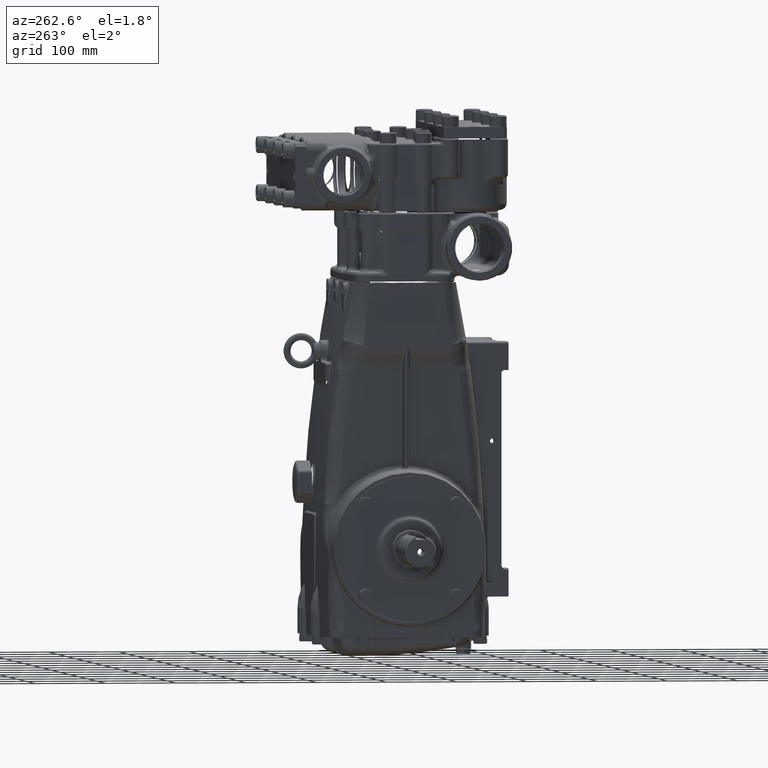
[diagram: clean part render]
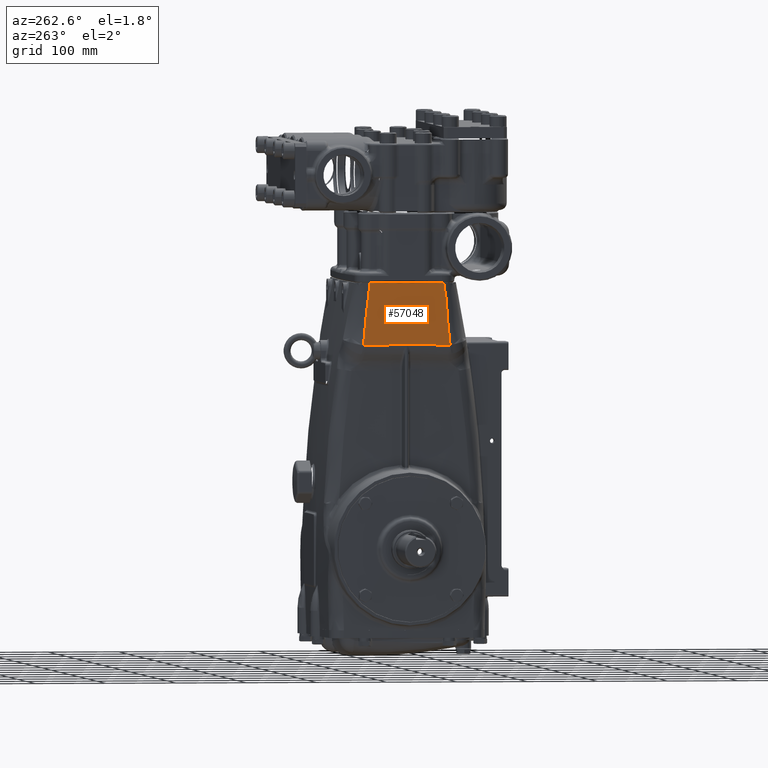
[diagram: same view with one face highlighted and labeled with its STEP entity id]
A machine part, auxiliary view. The second image highlights one B-rep face of the part: STEP entity #57048.
In plain terms, the highlighted cylindrical surface (partial cylindrical patch) has radius 1800 mm, axis along (-0, -0, 1).
Its self-contained STEP definition (entity closure, byte-faithful):
#525 = DIRECTION ( 'NONE',  ( -0.000000000000000000, -0.000000000000000000, 1.000000000000000000 ) ) ;
#535 = CARTESIAN_POINT ( 'NONE',  ( -5.910914856849399435, -2.193886037905765640, 13.98046140597031517 ) ) ;
#889 = ORIENTED_EDGE ( 'NONE', *, *, #108133, .T. ) ;
#1339 = EDGE_CURVE ( 'NONE', #38997, #28461, #31728, .T. ) ;
#2724 = CARTESIAN_POINT ( 'NONE',  ( -5.910311584975073806, 2.213292162712717115, 13.79568169888957563 ) ) ;
#2878 = CARTESIAN_POINT ( 'NONE',  ( -5.906210724278896151, -2.340843054100693710, 11.89896932830630938 ) ) ;
#3351 = CARTESIAN_POINT ( 'NONE',  ( -5.908434182414926461, 2.272563384559500133, 12.89164449754916575 ) ) ;
#3505 = CARTESIAN_POINT ( 'NONE',  ( -5.910056361448352114, -2.221427811899505222, 13.69827415346227184 ) ) ;
#3951 = CARTESIAN_POINT ( 'NONE',  ( -5.907926101290532195, 2.288331828485016040, 12.59603828090800448 ) ) ;
#4104 = CARTESIAN_POINT ( 'NONE',  ( -5.907385859755327928, -2.305001683636797249, 12.32399783327778309 ) ) ;
#4316 = EDGE_CURVE ( 'NONE', #122774, #124254, #118763, .T. ) ;
#9377 = DIRECTION ( 'NONE',  ( 1.000000000000000000, 0.000000000000000000, 0.000000000000000000 ) ) ;
#9386 = CARTESIAN_POINT ( 'NONE',  ( -5.905541375365363166, -2.360989895010109141, 11.72600538659578895 ) ) ;
#10001 = CARTESIAN_POINT ( 'NONE',  ( -5.906893569967431645, -2.320070968450516080, 12.12721524649918337 ) ) ;
#10958 = CARTESIAN_POINT ( 'NONE',  ( -5.912411521591919517, 2.145004686772696623, 14.33744058256331222 ) ) ;
#11431 = CARTESIAN_POINT ( 'NONE',  ( -5.944881889763780514, -0.7911277460980798981, 11.33801195392740446 ) ) ;
#12204 = CARTESIAN_POINT ( 'NONE',  ( -5.905583491758536141, 2.359726135792812762, 11.73641014919317271 ) ) ;
#12361 = CARTESIAN_POINT ( 'NONE',  ( -5.905528225752234128, -2.361384348573253522, 11.72284042517351743 ) ) ;
#12837 = CARTESIAN_POINT ( 'NONE',  ( -5.905557928655715827, 2.360493260507960933, 11.73019312247536305 ) ) ;
#12992 = CARTESIAN_POINT ( 'NONE',  ( -5.908673839083826707, -2.265069243921657538, 13.03219826566367345 ) ) ;
#13468 = CARTESIAN_POINT ( 'NONE',  ( -5.908673567012193040, 2.265077751738842515, 13.03242445659455662 ) ) ;
#13620 = CARTESIAN_POINT ( 'NONE',  ( -5.907925503807152090, -2.288350321938684040, 12.59533264268797126 ) ) ;
#14070 = CARTESIAN_POINT ( 'NONE',  ( -5.909797359077495926, 2.229702078746513383, 13.60556097325805069 ) ) ;
#14228 = CARTESIAN_POINT ( 'NONE',  ( -5.912331806775213749, -2.147635647510576007, 14.32089679793592296 ) ) ;
#14691 = CARTESIAN_POINT ( 'NONE',  ( -5.908251518864884311, 2.278240409770262431, 12.78495753448111749 ) ) ;
#16374 = CARTESIAN_POINT ( 'NONE',  ( -5.904836973050063165, -2.382033327837833170, 11.57145764498315543 ) ) ;
#16993 = EDGE_CURVE ( 'NONE', #92706, #78519, #85988, .T. ) ;
#17110 = ORIENTED_EDGE ( 'NONE', *, *, #91810, .T. ) ;
#18588 = CARTESIAN_POINT ( 'NONE',  ( -5.914316301299402667, 2.081233267886914540, 14.67785554985681529 ) ) ;
#18900 = CARTESIAN_POINT ( 'NONE',  ( -5.908983937900786465, -2.255372266826038974, 13.21457805618659087 ) ) ;
#19515 = ORIENTED_EDGE ( 'NONE', *, *, #16993, .T. ) ;
#19531 = CARTESIAN_POINT ( 'NONE',  ( -5.910663802918763032, -2.201962013150760900, 13.90348354608459580 ) ) ;
#19619 = AXIS2_PLACEMENT_3D ( 'NONE', #87103, #525, #9377 ) ;
#19838 = CARTESIAN_POINT ( 'NONE',  ( -5.914849519459009386, 2.062923769285555764, 14.76377952755905376 ) ) ;
#21087 = CARTESIAN_POINT ( 'NONE',  ( -5.913229139133507672, 2.117843687238893935, 14.49218836720061887 ) ) ;
#21717 = CARTESIAN_POINT ( 'NONE',  ( -5.906984198454624746, 2.317302330869617233, 12.16157686259979265 ) ) ;
#21864 = CARTESIAN_POINT ( 'NONE',  ( -5.907926245270652466, -2.288327371963689849, 12.59573738454983882 ) ) ;
#22323 = CARTESIAN_POINT ( 'NONE',  ( -5.907925971269326837, 2.288335852937914972, 12.59596694199654721 ) ) ;
#22478 = CARTESIAN_POINT ( 'NONE',  ( -5.908622468202515243, -2.266675148888330771, 13.00199565570684790 ) ) ;
#22953 = CARTESIAN_POINT ( 'NONE',  ( -5.903375805935151099, 2.425076266536521086, 11.30089893811133983 ) ) ;
#23106 = CARTESIAN_POINT ( 'NONE',  ( -5.910655530657336065, -2.202228099210286949, 13.90094257770731190 ) ) ;
#23576 = CARTESIAN_POINT ( 'NONE',  ( -5.907018452873892933, 2.316255145442352337, 12.17473861268919322 ) ) ;
#23724 = CARTESIAN_POINT ( 'NONE',  ( -5.912957260764703626, -2.126985211393721098, 14.44919566182865189 ) ) ;
#24167 = CARTESIAN_POINT ( 'NONE',  ( -5.910666534261126870, 2.201874150668091890, 13.90450443823717919 ) ) ;
#25871 = CARTESIAN_POINT ( 'NONE',  ( -5.903868404421727334, -2.410696825058905368, 11.38610251722253608 ) ) ;
#26188 = CARTESIAN_POINT ( 'NONE',  ( -5.911320192420449260, -2.180781614502945498, 14.09184732293710773 ) ) ;
#28059 = CARTESIAN_POINT ( 'NONE',  ( -5.910774986753275506, 2.198382997643469228, 13.93728534927780416 ) ) ;
#28461 = VERTEX_POINT ( 'NONE', #69296 ) ;
#28990 = CARTESIAN_POINT ( 'NONE',  ( -5.909465837348431450, -2.240209742213045807, 13.46024854086546263 ) ) ;
#30734 = CARTESIAN_POINT ( 'NONE',  ( -5.944881889763789395, 0.000000000000000000, 11.33801195392741334 ) ) ;
#30966 = ORIENTED_EDGE ( 'NONE', *, *, #33687, .T. ) ;
#31192 = CARTESIAN_POINT ( 'NONE',  ( -5.906987373075787140, 2.317205297167524325, 12.16278999478924128 ) ) ;
#31347 = CARTESIAN_POINT ( 'NONE',  ( -5.908189887958601894, -2.280153209043882967, 12.74866079386039353 ) ) ;
#31728 = B_SPLINE_CURVE_WITH_KNOTS ( 'NONE', 3,
 ( #19838, #18588, #58377, #21087, #57135, #68472, #96883, #106997, #59005, #97515, #10958, #49503, #88067, #69095, #88684, #76092, #114627, #28059, #95651, #47620, #33669, #50734, #98764, #24167, #51371, #2724, #14070, #41267, #62710, #33052, #61498, #100031, #101246, #109499, #79207, #69725, #51999, #71585, #89930, #13468, #3351, #14691, #81682, #89305, #108264, #52606, #108866, #53232, #117734, #3951, #22323, #91761, #40644, #79830, #91142, #43114, #118355, #72197, #110736, #110130, #23576, #90538, #99395, #31192, #100636, #21717, #32423, #60255, #70957, #31804, #60869, #62115, #41883, #12204, #118964, #70338, #12837, #42485, #80443, #120219, #22953 ),
 .UNSPECIFIED., .F., .F.,
 ( 4, 2, 1, 1, 1, 1, 1, 1, 2, 2, 1, 1, 1, 1, 1, 1, 1, 1, 2, 2, 1, 1, 1, 1, 1, 1, 1, 1, 1, 1, 1, 2, 2, 2, 1, 1, 1, 1, 1, 1, 1, 1, 1, 2, 2, 1, 1, 1, 1, 1, 1, 1, 1, 2, 2, 1, 1, 1, 1, 1, 1, 1, 2, 2, 4 ),
 ( 0.000000000000000000, 0.06250000000417306467, 0.09375000000626051988, 0.1093750000073052536, 0.1171875000078276413, 0.1210937500080877111, 0.1230468750082188978, 0.1240234375082833046, 0.1245117187583155011, 0.1250000000083477114, 0.1875000000124950605, 0.2187500000145687351, 0.2343750000156064606, 0.2421875000161244351, 0.2460937500163843106, 0.2480468750165142622, 0.2490234375165783498, 0.2495117187666103797, 0.2497558593916264225, 0.2500000000166424097, 0.3750000000251201837, 0.4375000000293599589, 0.4687500000314789861, 0.4843750000325385274, 0.4921875000330675487, 0.4960937500333313377, 0.4980468750334631767, 0.4990234375335290684, 0.4995117187835613204, 0.4997558594085774186, 0.4998779297210862449, 0.4999389648773399641, 0.5000000000335935724, 0.5625000000370895537, 0.5937500000388373778, 0.6093750000397131217, 0.6171875000401509936, 0.6210937500403699296, 0.6230468750404793976, 0.6240234375405242506, 0.6245117187905466771, 0.6247558594155705469, 0.6248779297280825373, 0.6249389648843248768, 0.6250000000405671052, 0.6875000000336500827, 0.7187500000301906278, 0.7343750000284609003, 0.7421875000275949263, 0.7460937500271619394, 0.7480468750269454459, 0.7490234375268360889, 0.7495117187767814659, 0.7497558594017541544, 0.7500000000267267319, 0.8125000000201291206, 0.8437500000168303149, 0.8593750000151799684, 0.8671875000143547396, 0.8710937500139421807, 0.8730468750137347911, 0.8740234375136310963, 0.8745117187635792488, 0.8750000000135274014, 1.000000000000000000 ),
 .UNSPECIFIED. ) ;
#31804 = CARTESIAN_POINT ( 'NONE',  ( -5.906016381522832148, 2.346702566661738487, 11.84755615944344953 ) ) ;
#31958 = CARTESIAN_POINT ( 'NONE',  ( -5.905447124792739366, -2.363815928739164018, 11.70360253815453433 ) ) ;
#32423 = CARTESIAN_POINT ( 'NONE',  ( -5.906983724185893792, 2.317316826873552227, 12.16139571799301500 ) ) ;
#32581 = CARTESIAN_POINT ( 'NONE',  ( -5.910588093824340916, -2.204396247899172323, 13.87997393401313140 ) ) ;
#33052 = CARTESIAN_POINT ( 'NONE',  ( -5.908809579912570165, 2.260821146657628233, 13.11103706078430342 ) ) ;
#33209 = CARTESIAN_POINT ( 'NONE',  ( -5.910660355757156204, -2.202072898084340480, 13.90242550949435518 ) ) ;
#33669 = CARTESIAN_POINT ( 'NONE',  ( -5.910678260647441284, 2.201496899145066966, 13.90809238845904972 ) ) ;
#33670 = ORIENTED_EDGE ( 'NONE', *, *, #4316, .T. ) ;
#33687 = EDGE_CURVE ( 'NONE', #124254, #70352, #104719, .T. ) ;
#34072 = EDGE_LOOP ( 'NONE', ( #17110, #72224, #102532, #33670, #30966, #889, #19515 ) ) ;
#34425 = CARTESIAN_POINT ( 'NONE',  ( -5.913783481561727839, -2.099529445113942572, 14.59190078789779577 ) ) ;
#35054 = CARTESIAN_POINT ( 'NONE',  ( -5.912367555594764568, -2.146456113003074595, 14.32828832679644826 ) ) ;
#37984 = CARTESIAN_POINT ( 'NONE',  ( -5.903960270934229371, -2.408013827566592546, 11.29745724495016468 ) ) ;
#38462 = CARTESIAN_POINT ( 'NONE',  ( -5.908660965256409270, -2.265471784821569301, 13.02462738432079981 ) ) ;
#38997 = VERTEX_POINT ( 'NONE', #93097 ) ;
#39095 = CARTESIAN_POINT ( 'NONE',  ( -5.906801625286711044, -2.322876944094643292, 12.09365604811865680 ) ) ;
#40644 = CARTESIAN_POINT ( 'NONE',  ( -5.907925882226328085, 2.288338609018522263, 12.59591822003274331 ) ) ;
#40928 = CARTESIAN_POINT ( 'NONE',  ( 64.92125984251968873, 0.000000000000000000, 14.76377952755905376 ) ) ;
#41267 = CARTESIAN_POINT ( 'NONE',  ( -5.909225665884736856, 2.247756914242586390, 13.33513139633698152 ) ) ;
#41424 = CARTESIAN_POINT ( 'NONE',  ( -5.908572489952081064, -2.268236569756057364, 12.97263188438320647 ) ) ;
#41751 = CIRCLE ( 'NONE', #96221, 70.86614173228348079 ) ;
#41883 = CARTESIAN_POINT ( 'NONE',  ( -5.905613202200761691, 2.358834284329041076, 11.74368165415275733 ) ) ;
#42034 = CARTESIAN_POINT ( 'NONE',  ( -5.908670725099357313, -2.265166618119822228, 13.03036686559766366 ) ) ;
#42485 = CARTESIAN_POINT ( 'NONE',  ( -5.905555514685309149, 2.360565690588433352, 11.72960788464305715 ) ) ;
#42642 = CARTESIAN_POINT ( 'NONE',  ( -5.906961310545741028, -2.318001807492295896, 12.15259303498678811 ) ) ;
#43114 = CARTESIAN_POINT ( 'NONE',  ( -5.907774054123752450, 2.293038025342771569, 12.51302298081366082 ) ) ;
#44490 = CARTESIAN_POINT ( 'NONE',  ( -5.912385478397920835, -2.145864539222887668, 14.33197820121930910 ) ) ;
#45122 = CARTESIAN_POINT ( 'NONE',  ( -5.912401270045752000, -2.145343192925556863, 14.33522066649845783 ) ) ;
#46186 = CARTESIAN_POINT ( 'NONE',  ( -5.903376586306757545, -2.425053475419854276, 11.30089932007131459 ) ) ;
#47620 = CARTESIAN_POINT ( 'NONE',  ( -5.910691973858821058, 2.201055658973258833, 13.91227466675942814 ) ) ;
#47912 = FACE_OUTER_BOUND ( 'NONE', #34072, .T. ) ;
#47919 = CARTESIAN_POINT ( 'NONE',  ( -5.905333103806380102, -2.367230992023289904, 11.67729037283493554 ) ) ;
#48537 = CARTESIAN_POINT ( 'NONE',  ( -5.910664206654299591, -2.201949026004639265, 13.90360742140967787 ) ) ;
#49503 = CARTESIAN_POINT ( 'NONE',  ( -5.912407176762159544, 2.145148159625524631, 14.33655159732869144 ) ) ;
#50734 = CARTESIAN_POINT ( 'NONE',  ( -5.910671417157693952, 2.201717068868905613, 13.90599976739307664 ) ) ;
#50894 = CARTESIAN_POINT ( 'NONE',  ( -5.907146162960594360, -2.312351928082398533, 12.22312337869104049 ) ) ;
#51371 = CARTESIAN_POINT ( 'NONE',  ( -5.910665271862801440, 2.201914760178965036, 13.90411753428069375 ) ) ;
#51531 = CARTESIAN_POINT ( 'NONE',  ( -5.907909924821609593, -2.288832481220072879, 12.58684947114182506 ) ) ;
#51999 = CARTESIAN_POINT ( 'NONE',  ( -5.908674393114756285, 2.265051919040012240, 13.03291019620245450 ) ) ;
#52150 = CARTESIAN_POINT ( 'NONE',  ( -5.910511285549894467, -2.206863464533414199, 13.85553525853279133 ) ) ;
#52606 = CARTESIAN_POINT ( 'NONE',  ( -5.907932892053354479, 2.288121631570745773, 12.59986493567412857 ) ) ;
#53232 = CARTESIAN_POINT ( 'NONE',  ( -5.907927011945045770, 2.288303641488663498, 12.59654247832490093 ) ) ;
#53607 = CARTESIAN_POINT ( 'NONE',  ( -5.903376586306757545, -2.425053475419854276, 11.30089932007131459 ) ) ;
#55392 = CARTESIAN_POINT ( 'NONE',  ( -5.905145740766999829, -2.372828727882712929, 11.29664917894829834 ) ) ;
#57048 = ADVANCED_FACE ( 'NONE', ( #47912 ), #105426, .T. ) ;
#57135 = CARTESIAN_POINT ( 'NONE',  ( -5.912946418877834454, 2.127280557214457968, 14.44140605342365902 ) ) ;
#57439 = CARTESIAN_POINT ( 'NONE',  ( -5.905550704305387200, -2.360710017635931912, 11.72825889983235648 ) ) ;
#58072 = CARTESIAN_POINT ( 'NONE',  ( -5.906978082837019528, -2.317489247722475554, 12.15896539144380561 ) ) ;
#58377 = CARTESIAN_POINT ( 'NONE',  ( -5.913842805634069499, 2.097251884575155323, 14.59921726255442209 ) ) ;
#58841 = CARTESIAN_POINT ( 'NONE',  ( -5.903959515862932328, 2.408036040008168843, 11.29745660387063744 ) ) ;
#59005 = CARTESIAN_POINT ( 'NONE',  ( -5.912433373583989571, 2.144282988386367883, 14.34189929391718721 ) ) ;
#59478 = CARTESIAN_POINT ( 'NONE',  ( -5.905145740766999829, -2.372828727882712929, 11.29664917894829834 ) ) ;
#60255 = CARTESIAN_POINT ( 'NONE',  ( -5.906779215138526773, 2.323567532111388001, 12.08332560752385731 ) ) ;
#60410 = CARTESIAN_POINT ( 'NONE',  ( -5.908477174946255239, -2.271211761875668866, 12.91668788514720312 ) ) ;
#60704 = CARTESIAN_POINT ( 'NONE',  ( -5.944881889763789395, 0.000000000000000000, 11.33801195392741334 ) ) ;
#60869 = CARTESIAN_POINT ( 'NONE',  ( -5.905788906318869103, 2.353554015934743227, 11.78772537108157081 ) ) ;
#61027 = CARTESIAN_POINT ( 'NONE',  ( -5.908673056883660735, -2.265093703616466669, 13.03173823051254843 ) ) ;
#61498 = CARTESIAN_POINT ( 'NONE',  ( -5.908741302749783486, 2.262958777949713784, 13.07191532545369661 ) ) ;
#61656 = CARTESIAN_POINT ( 'NONE',  ( -5.907859966048493838, -2.290378084995074115, 12.55991400771519473 ) ) ;
#62115 = CARTESIAN_POINT ( 'NONE',  ( -5.905672257207958076, 2.357060701444123385, 11.75828390509639831 ) ) ;
#62710 = CARTESIAN_POINT ( 'NONE',  ( -5.908947054855834935, 2.256511820642408406, 13.18776109195536606 ) ) ;
#63491 = CARTESIAN_POINT ( 'NONE',  ( -5.912260696901864065, -2.149980264331264657, 14.30606662015562591 ) ) ;
#64106 = CARTESIAN_POINT ( 'NONE',  ( -5.912120033135460417, -2.154611689339591685, 14.27621778435805311 ) ) ;
#67534 = CARTESIAN_POINT ( 'NONE',  ( -5.910626602959386133, -2.203158372550598543, 13.89200346724993373 ) ) ;
#68472 = CARTESIAN_POINT ( 'NONE',  ( -5.912659975979523530, 2.136786969310013440, 14.38694125500877874 ) ) ;
#69095 = CARTESIAN_POINT ( 'NONE',  ( -5.912074343975505464, 2.156137704011513279, 14.26832902117558888 ) ) ;
#69296 = CARTESIAN_POINT ( 'NONE',  ( -5.903375805935151099, 2.425076266536521086, 11.30089893811133983 ) ) ;
#69725 = CARTESIAN_POINT ( 'NONE',  ( -5.908675452838605402, 2.265018780512672247, 13.03353315845955862 ) ) ;
#69882 = CARTESIAN_POINT ( 'NONE',  ( -5.905552285682732716, -2.360662572354068178, 11.72864148323970568 ) ) ;
#69899 = CARTESIAN_POINT ( 'NONE',  ( -5.905145041411413054, 2.372849602808741132, 11.29664845096411518 ) ) ;
#70338 = CARTESIAN_POINT ( 'NONE',  ( -5.905562194806917020, 2.360365250773306389, 11.73122838264670875 ) ) ;
#70352 = VERTEX_POINT ( 'NONE', #55392 ) ;
#70489 = CARTESIAN_POINT ( 'NONE',  ( -5.905827633517976238, -2.352401104028594148, 11.79534088323732277 ) ) ;
#70957 = CARTESIAN_POINT ( 'NONE',  ( -5.906448200662091530, 2.333647360579240715, 11.97100916173336671 ) ) ;
#71112 = CARTESIAN_POINT ( 'NONE',  ( -5.910645883728444794, -2.202538368117034739, 13.89797078274249387 ) ) ;
#71585 = CARTESIAN_POINT ( 'NONE',  ( -5.908673938971610085, 2.265066120374979342, 13.03264317263259819 ) ) ;
#71738 = CARTESIAN_POINT ( 'NONE',  ( -5.910662424007406379, -2.202006369029120503, 13.90306041618265098 ) ) ;
#72197 = CARTESIAN_POINT ( 'NONE',  ( -5.907265034704678008, 2.308704891830010375, 12.27424975218368886 ) ) ;
#72224 = ORIENTED_EDGE ( 'NONE', *, *, #1339, .T. ) ;
#73579 = CARTESIAN_POINT ( 'NONE',  ( -5.914850108854505351, -2.062903530685586961, 14.76377952755905376 ) ) ;
#73773 = CARTESIAN_POINT ( 'NONE',  ( -5.944881889763789395, 0.000000000000000000, 11.33801195392741334 ) ) ;
#75781 = B_SPLINE_CURVE_WITH_KNOTS ( 'NONE', 3,
 ( #85389, #75914, #37984, #46186 ),
 .UNSPECIFIED., .F., .F.,
 ( 4, 4 ),
 ( 0.000000000000000000, 1.000000000000000000 ),
 .UNSPECIFIED. ) ;
#75914 = CARTESIAN_POINT ( 'NONE',  ( -5.904550180776596768, -2.390605558099901717, 11.29604071551443845 ) ) ;
#76092 = CARTESIAN_POINT ( 'NONE',  ( -5.911119552194555204, 2.187260002439114004, 14.03590544019855457 ) ) ;
#77002 = CARTESIAN_POINT ( 'NONE',  ( -5.908667465795435447, -2.265268532606619090, 13.02845008076655553 ) ) ;
#77637 = CARTESIAN_POINT ( 'NONE',  ( -5.907893289852319541, -2.289347226339031316, 12.57783531171034141 ) ) ;
#78519 = VERTEX_POINT ( 'NONE', #100409 ) ;
#78856 = DIRECTION ( 'NONE',  ( -0.000000000000000000, -0.000000000000000000, -1.000000000000000000 ) ) ;
#79207 = CARTESIAN_POINT ( 'NONE',  ( -5.908677572512333498, 2.264952495141791200, 13.03477871201685723 ) ) ;
#79830 = CARTESIAN_POINT ( 'NONE',  ( -5.907925864761807588, 2.288339149584246890, 12.59590867641229117 ) ) ;
#79991 = CARTESIAN_POINT ( 'NONE',  ( -5.905501611925175531, -2.362182521245813849, 11.71647505683106516 ) ) ;
#80443 = CARTESIAN_POINT ( 'NONE',  ( -5.905078663283149787, 2.374872883555778191, 11.61408808050660291 ) ) ;
#80591 = CARTESIAN_POINT ( 'NONE',  ( -5.905546977220835991, -2.360821836220552417, 11.72735800090198133 ) ) ;
#81215 = CARTESIAN_POINT ( 'NONE',  ( -5.907935454055682989, -2.288042336988228787, 12.60076519160816311 ) ) ;
#81682 = CARTESIAN_POINT ( 'NONE',  ( -5.908064203824373806, 2.284054053072834378, 12.67586056439279041 ) ) ;
#83362 = CARTESIAN_POINT ( 'NONE',  ( -5.903376586306757545, -2.425053475419854276, 11.30089932007131459 ) ) ;
#85389 = CARTESIAN_POINT ( 'NONE',  ( -5.905145740766999829, -2.372828727882712929, 11.29664917894829834 ) ) ;
#85988 = B_SPLINE_CURVE_WITH_KNOTS ( 'NONE', 3,
 ( #83362, #25871, #102920, #16374, #98920, #47919, #31958, #79991, #12361, #9386, #80591, #57439, #69882, #70489, #2878, #118512, #39095, #10001, #109656, #42642, #100185, #58072, #87110, #115545, #125034, #50894, #4104, #116180, #90685, #61656, #77637, #51531, #108415, #90089, #119750, #13620, #95961, #21864, #96571, #81215, #106077, #31347, #89456, #60410, #41424, #22478, #86489, #38462, #77002, #42034, #109027, #61027, #99554, #12992, #18900, #28990, #3505, #119118, #52150, #32581, #67534, #71112, #23106, #33209, #71738, #19531, #48537, #535, #26188, #121614, #64106, #63491, #14228, #35054, #44490, #102032, #100782, #45122, #23724, #34425, #73579 ),
 .UNSPECIFIED., .F., .F.,
 ( 4, 2, 1, 1, 1, 1, 1, 1, 2, 2, 1, 1, 1, 1, 1, 1, 1, 1, 2, 2, 1, 1, 1, 1, 1, 1, 1, 1, 1, 1, 2, 2, 2, 1, 1, 1, 1, 1, 1, 1, 1, 1, 2, 2, 1, 1, 1, 1, 1, 1, 1, 1, 1, 2, 2, 1, 1, 1, 1, 1, 1, 1, 2, 2, 4 ),
 ( 0.000000000000000000, 0.06249999999974054088, 0.09374999999961081132, 0.1093749999995448918, 0.1171874999995119321, 0.1210937499994966110, 0.1230468749994889366, 0.1240234374994839683, 0.1245117187494826222, 0.1249999999994812760, 0.1874999999991568966, 0.2187499999989946931, 0.2343749999989145072, 0.2421874999988735400, 0.2460937499988530286, 0.2480468749988427868, 0.2490234374988367916, 0.2495117187488337940, 0.2497558593738314348, 0.2499999999988290478, 0.3124999999979255483, 0.3437499999974728548, 0.3593749999972456477, 0.3671874999971328490, 0.3710937499970773379, 0.3730468749970504150, 0.3740234374970369258, 0.3745117187470302089, 0.3747558593720268227, 0.3748779296845251574, 0.3749389648407735476, 0.3749999999970218822, 0.4374999999959829355, 0.4687499999954634622, 0.4843749999952043916, 0.4921874999950742735, 0.4960937499950092144, 0.4980468749949771845, 0.4990234374949611973, 0.4995117187449537033, 0.4997558593699499285, 0.4998779296824485407, 0.4999389648386983742, 0.4999999999949481522, 0.6249999999963756769, 0.6874999999970894393, 0.7187499999974473752, 0.7343749999976263432, 0.7421874999977146059, 0.7460937499977587928, 0.7480468749977808862, 0.7490234374977919884, 0.7495117187477986498, 0.7497558593728007592, 0.7499999999978028686, 0.8124999999982414067, 0.8437499999984596766, 0.8593749999985688115, 0.8671874999986243227, 0.8710937499986530774, 0.8730468749986665111, 0.8740234374986742827, 0.8745117187486790566, 0.8749999999986839416, 1.000000000000000000 ),
 .UNSPECIFIED. ) ;
#86489 = CARTESIAN_POINT ( 'NONE',  ( -5.908648036470469656, -2.265875982219262230, 13.01702548429508077 ) ) ;
#87103 = CARTESIAN_POINT ( 'NONE',  ( 64.92125984251968873, 0.000000000000000000, 10.03937007874015563 ) ) ;
#87110 = CARTESIAN_POINT ( 'NONE',  ( -5.906980473454533254, -2.317416182580672057, 12.15987665839169374 ) ) ;
#88067 = CARTESIAN_POINT ( 'NONE',  ( -5.912405410717039622, 2.145206474836610866, 14.33619000024514634 ) ) ;
#88684 = CARTESIAN_POINT ( 'NONE',  ( -5.911609795965371283, 2.171353261600236007, 14.16385810397932410 ) ) ;
#89305 = CARTESIAN_POINT ( 'NONE',  ( -5.907992197049621197, 2.286285400491313347, 12.63404544797705498 ) ) ;
#89456 = CARTESIAN_POINT ( 'NONE',  ( -5.908305174442163299, -2.276571549674029526, 12.81593406032033577 ) ) ;
#89930 = CARTESIAN_POINT ( 'NONE',  ( -5.908673636214894387, 2.265075587733624385, 13.03246514808705747 ) ) ;
#90089 = CARTESIAN_POINT ( 'NONE',  ( -5.907922389271537789, -2.288446721722634525, 12.59363350021778238 ) ) ;
#90538 = CARTESIAN_POINT ( 'NONE',  ( -5.907000699998951276, 2.316797915951817721, 12.16789749022835032 ) ) ;
#90685 = CARTESIAN_POINT ( 'NONE',  ( -5.907793102774810734, -2.292445275973542085, 12.52449945919616781 ) ) ;
#91142 = CARTESIAN_POINT ( 'NONE',  ( -5.907925995699470967, 2.288335096773560728, 12.59598016377677077 ) ) ;
#91761 = CARTESIAN_POINT ( 'NONE',  ( -5.907925908589608532, 2.288337793016503863, 12.59593263261130502 ) ) ;
#91810 = EDGE_CURVE ( 'NONE', #78519, #38997, #41751, .T. ) ;
#92368 = CARTESIAN_POINT ( 'NONE',  ( -5.905145041411413054, 2.372849602808741132, 11.29664845096411518 ) ) ;
#92706 = VERTEX_POINT ( 'NONE', #53607 ) ;
#93097 = CARTESIAN_POINT ( 'NONE',  ( -5.914849519459009386, 2.062923769285555764, 14.76377952755905376 ) ) ;
#95484 = CARTESIAN_POINT ( 'NONE',  ( -5.903375805935151099, 2.425076266536521086, 11.30089893811133983 ) ) ;
#95651 = CARTESIAN_POINT ( 'NONE',  ( -5.910719505151603492, 2.200169575731908633, 13.92062736803391942 ) ) ;
#95961 = CARTESIAN_POINT ( 'NONE',  ( -5.907925948688254714, -2.288336551877323544, 12.59557548183328102 ) ) ;
#96221 = AXIS2_PLACEMENT_3D ( 'NONE', #40928, #78856, #117395 ) ;
#96571 = CARTESIAN_POINT ( 'NONE',  ( -5.907926533142209280, -2.288318461630884482, 12.59589455035079375 ) ) ;
#96883 = CARTESIAN_POINT ( 'NONE',  ( -5.912527729218598260, 2.141164361714797071, 14.36090416438256234 ) ) ;
#97352 = CARTESIAN_POINT ( 'NONE',  ( -5.904549452860863745, 2.390627128942514723, 11.29603995860295029 ) ) ;
#97515 = CARTESIAN_POINT ( 'NONE',  ( -5.912418051211069780, 2.144789058062345877, 14.33877539446498872 ) ) ;
#98764 = CARTESIAN_POINT ( 'NONE',  ( -5.910668487044859809, 2.201811330815916623, 13.90510261223999322 ) ) ;
#98920 = CARTESIAN_POINT ( 'NONE',  ( -5.905084801157298280, -2.374654109298677263, 11.62239753032961787 ) ) ;
#99395 = CARTESIAN_POINT ( 'NONE',  ( -5.906991816552033647, 2.317069474539982465, 12.16449026980165726 ) ) ;
#99554 = CARTESIAN_POINT ( 'NONE',  ( -5.908673523573869879, -2.265079110073227486, 13.03201270413225998 ) ) ;
#100031 = CARTESIAN_POINT ( 'NONE',  ( -5.908707279576093541, 2.264023335676851545, 13.05216452785212589 ) ) ;
#100185 = CARTESIAN_POINT ( 'NONE',  ( -5.906972499305956248, -2.317659890735875194, 12.15684003220991016 ) ) ;
#100409 = CARTESIAN_POINT ( 'NONE',  ( -5.914850108854505351, -2.062903530685586961, 14.76377952755905376 ) ) ;
#100636 = CARTESIAN_POINT ( 'NONE',  ( -5.906985468353179058, 2.317263516150661840, 12.16206202018411453 ) ) ;
#100782 = CARTESIAN_POINT ( 'NONE',  ( -5.912398299971339810, -2.145441255309102679, 14.33461144175644542 ) ) ;
#101246 = CARTESIAN_POINT ( 'NONE',  ( -5.908690296882330273, 2.264554550061988802, 13.04224164656727680 ) ) ;
#101802 = B_SPLINE_CURVE_WITH_KNOTS ( 'NONE', 3,
 ( #95484, #58841, #97352, #116942 ),
 .UNSPECIFIED., .F., .F.,
 ( 4, 4 ),
 ( 0.000000000000000000, 1.000000000000000000 ),
 .UNSPECIFIED. ) ;
#102032 = CARTESIAN_POINT ( 'NONE',  ( -5.912393169960964201, -2.145610620489698750, 14.33355831382751155 ) ) ;
#102532 = ORIENTED_EDGE ( 'NONE', *, *, #122900, .T. ) ;
#102920 = CARTESIAN_POINT ( 'NONE',  ( -5.904293807899241742, -2.398147131624760231, 11.46439270431054247 ) ) ;
#104719 =( BOUNDED_CURVE ( )  B_SPLINE_CURVE ( 3, ( #60704, #11431, #118809, #59478 ),
 .UNSPECIFIED., .F., .F. ) 
 B_SPLINE_CURVE_WITH_KNOTS ( ( 4, 4 ),
 ( 0.000000000000000000, 0.03348950948694121021 ),
 .UNSPECIFIED. ) 
 CURVE ( )  GEOMETRIC_REPRESENTATION_ITEM ( )  RATIONAL_B_SPLINE_CURVE ( ( 1.000000000000000000, 0.9999065399133055809, 0.9999065399133055809, 1.000000000000000000 ) ) 
 REPRESENTATION_ITEM ( '' )  );
#105426 = CYLINDRICAL_SURFACE ( 'NONE', #19619, 70.86614173228348079 ) ;
#106077 = CARTESIAN_POINT ( 'NONE',  ( -5.908002582631886490, -2.285966615022957171, 12.63956380070080954 ) ) ;
#106997 = CARTESIAN_POINT ( 'NONE',  ( -5.912464364493356328, 2.143259104953934013, 14.34818444621476452 ) ) ;
#107811 = CARTESIAN_POINT ( 'NONE',  ( -5.931635035572393910, 1.582158507343740528, 11.32422283085098513 ) ) ;
#108133 = EDGE_CURVE ( 'NONE', #70352, #92706, #75781, .T. ) ;
#108264 = CARTESIAN_POINT ( 'NONE',  ( -5.907946300177029819, 2.287706566398291397, 12.60754454059181207 ) ) ;
#108415 = CARTESIAN_POINT ( 'NONE',  ( -5.907918235576282484, -2.288575279713105814, 12.59136992771605357 ) ) ;
#108866 = CARTESIAN_POINT ( 'NONE',  ( -5.907928574215944195, 2.288255284748716978, 12.59741784540901932 ) ) ;
#109027 = CARTESIAN_POINT ( 'NONE',  ( -5.908672357009643328, -2.265115588781693390, 13.03132661716527174 ) ) ;
#109499 = CARTESIAN_POINT ( 'NONE',  ( -5.908681812763847851, 2.264819891135029462, 13.03726833530383367 ) ) ;
#109656 = CARTESIAN_POINT ( 'NONE',  ( -5.906938846201674309, -2.318688163923551926, 12.14411392551928159 ) ) ;
#110130 = CARTESIAN_POINT ( 'NONE',  ( -5.907053902575530202, 2.315170991092177388, 12.18852758404067060 ) ) ;
#110736 = CARTESIAN_POINT ( 'NONE',  ( -5.907124578004150806, 2.313008229074265287, 12.21653243246279352 ) ) ;
#114627 = CARTESIAN_POINT ( 'NONE',  ( -5.910887622280017517, 2.194752194930855271, 13.97041162654521962 ) ) ;
#115545 = CARTESIAN_POINT ( 'NONE',  ( -5.906982066683062804, -2.317367487503521950, 12.16048425829134949 ) ) ;
#116180 = CARTESIAN_POINT ( 'NONE',  ( -5.907658511919636979, -2.296601552537814950, 12.45538260004322417 ) ) ;
#116942 = CARTESIAN_POINT ( 'NONE',  ( -5.905145041411413054, 2.372849602808741132, 11.29664845096411518 ) ) ;
#117273 = CARTESIAN_POINT ( 'NONE',  ( -5.944881889763779625, 0.7911347092868183939, 11.33801195392740269 ) ) ;
#117395 = DIRECTION ( 'NONE',  ( 1.000000000000000000, 0.000000000000000000, 0.000000000000000000 ) ) ;
#117734 = CARTESIAN_POINT ( 'NONE',  ( -5.907926379979780762, 2.288323202396558287, 12.59619183929495279 ) ) ;
#118355 = CARTESIAN_POINT ( 'NONE',  ( -5.907542385340669888, 2.300186964994692662, 12.39651488313214323 ) ) ;
#118512 = CARTESIAN_POINT ( 'NONE',  ( -5.906612150607194245, -2.328650361194879448, 12.02749028999629211 ) ) ;
#118763 =( BOUNDED_CURVE ( )  B_SPLINE_CURVE ( 3, ( #69899, #107811, #117273, #30734 ),
 .UNSPECIFIED., .F., .F. ) 
 B_SPLINE_CURVE_WITH_KNOTS ( ( 4, 4 ),
 ( 6.249695502958979354, 6.283185307179586232 ),
 .UNSPECIFIED. ) 
 CURVE ( )  GEOMETRIC_REPRESENTATION_ITEM ( )  RATIONAL_B_SPLINE_CURVE ( ( 1.000000000000000000, 0.9999065382682942316, 0.9999065382682942316, 1.000000000000000000 ) ) 
 REPRESENTATION_ITEM ( '' )  );
#118809 = CARTESIAN_POINT ( 'NONE',  ( -5.931635268734507527, -1.582144583894554923, 11.32422307355774826 ) ) ;
#118964 = CARTESIAN_POINT ( 'NONE',  ( -5.905568590761821390, 2.360173326528731685, 11.73278180184143693 ) ) ;
#119118 = CARTESIAN_POINT ( 'NONE',  ( -5.910358512039800338, -2.211763761638367409, 13.80513947154520338 ) ) ;
#119750 = CARTESIAN_POINT ( 'NONE',  ( -5.907924465698684457, -2.288382453418289941, 12.59476612252230154 ) ) ;
#120219 = CARTESIAN_POINT ( 'NONE',  ( -5.904359374784609926, 2.396358114100670456, 11.47133474665070274 ) ) ;
#121614 = CARTESIAN_POINT ( 'NONE',  ( -5.911844968358781927, -2.163643305959773500, 14.21576619181496248 ) ) ;
#122774 = VERTEX_POINT ( 'NONE', #92368 ) ;
#122900 = EDGE_CURVE ( 'NONE', #28461, #122774, #101802, .T. ) ;
#124254 = VERTEX_POINT ( 'NONE', #73773 ) ;
#125034 = CARTESIAN_POINT ( 'NONE',  ( -5.906983024356325274, -2.317338216854290867, 12.16084968098479635 ) ) ;